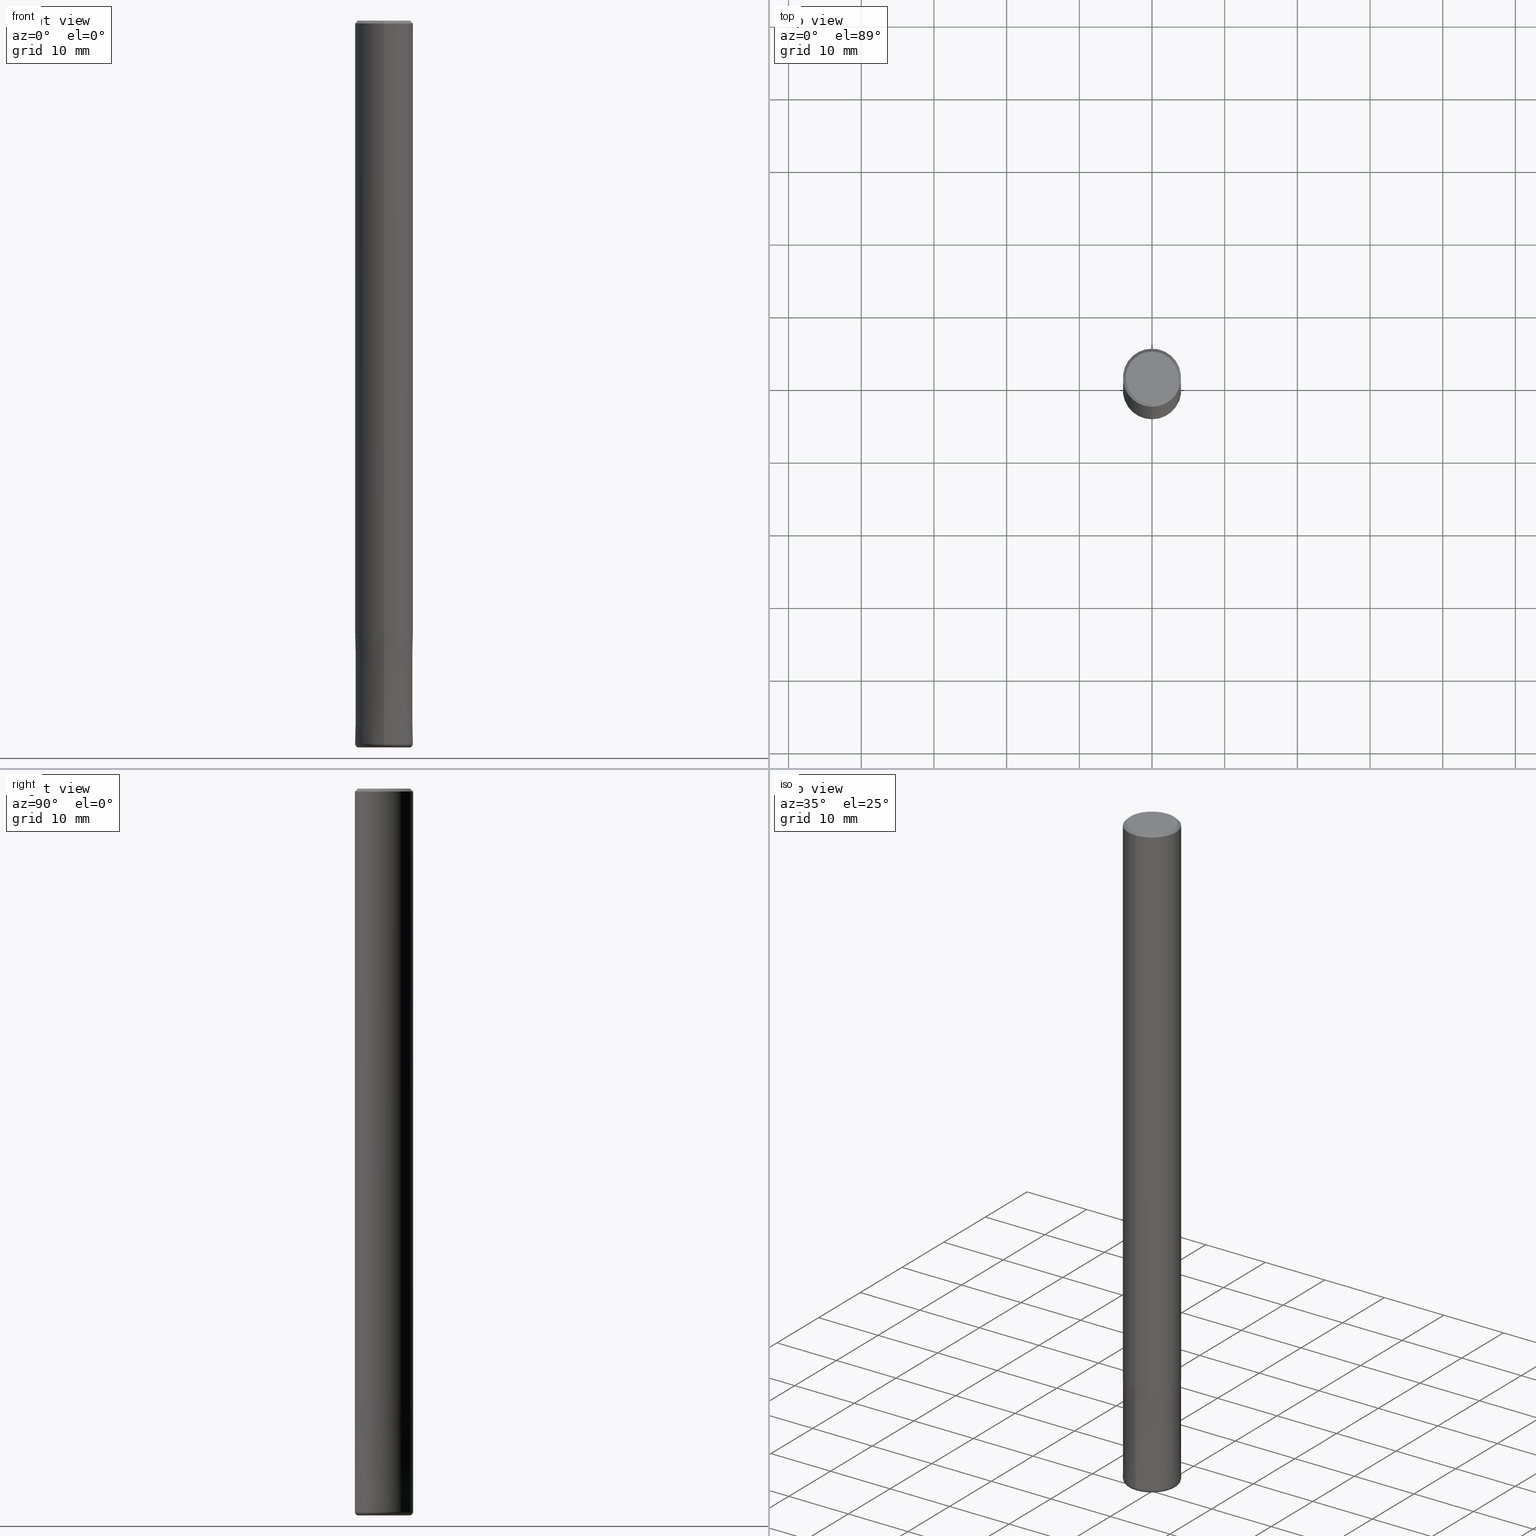
[diagram: canonical four-view strip — front | top / right | iso, engineering-drawing reading convention]
A machine part, canonical four-view strip (front | top / right | iso — engineering-drawing reading convention). The complete STEP part file that produces these views, byte-faithful:
ISO-10303-21;
HEADER;
FILE_DESCRIPTION(('no description'),'unknown implementation level');
FILE_NAME('CNRS4080-05-16-Huellk.stp','  ',('CIMSOURCE GmbH'),('CADClick - KiM GmbH - www.kimweb.de'),'unknown preprocess','ACIS','unknown authorization');
FILE_SCHEMA(('automotive_design'));
ENDSEC;
DATA;
#1=MECHANICAL_DESIGN_GEOMETRIC_PRESENTATION_REPRESENTATION(' ',(#10,#11,#12,#13,#14,#15,#16,#17,#18,#19,#20,#21,#22,#23,#24,#25,#26,#27,#28,#29,#30,#31,#32,#33,#34,#35,#36,#37,#38,#39,#40,#41,#42,#43,#44,#45,#46,#47,#48,#49,#50,#51,#52,#53),#6);
#2=PRODUCT_DEFINITION_CONTEXT('',#54,'design');
#3=APPLICATION_PROTOCOL_DEFINITION('INTERNATIONAL STANDARD','automotive_design',1994,#54);
#4=PRODUCT_CATEGORY_RELATIONSHIP('NONE','NONE',#55,#56);
#5=SHAPE_DEFINITION_REPRESENTATION(#57,#58);
#6= (GEOMETRIC_REPRESENTATION_CONTEXT(3)GLOBAL_UNCERTAINTY_ASSIGNED_CONTEXT((#61))GLOBAL_UNIT_ASSIGNED_CONTEXT((#63,#64,#65))REPRESENTATION_CONTEXT('NONE','WORKSPACE'));
#10=STYLED_ITEM('',(#67),#68);
#11=STYLED_ITEM('',(#69),#70);
#12=STYLED_ITEM('',(#71),#72);
#13=STYLED_ITEM('',(#73),#74);
#14=STYLED_ITEM('',(#75),#76);
#15=STYLED_ITEM('',(#77),#78);
#16=STYLED_ITEM('',(#79),#80);
#17=STYLED_ITEM('',(#81),#82);
#18=STYLED_ITEM('',(#83),#84);
#19=STYLED_ITEM('',(#85),#86);
#20=STYLED_ITEM('',(#87),#88);
#21=STYLED_ITEM('',(#89),#90);
#22=STYLED_ITEM('',(#91),#92);
#23=STYLED_ITEM('',(#93),#94);
#24=STYLED_ITEM('',(#95),#96);
#25=STYLED_ITEM('',(#97),#98);
#26=STYLED_ITEM('',(#99),#100);
#27=STYLED_ITEM('',(#101),#102);
#28=STYLED_ITEM('',(#103),#104);
#29=STYLED_ITEM('',(#105),#106);
#30=STYLED_ITEM('',(#107),#108);
#31=STYLED_ITEM('',(#109),#110);
#32=STYLED_ITEM('',(#111),#112);
#33=STYLED_ITEM('',(#113),#114);
#34=STYLED_ITEM('',(#115),#116);
#35=STYLED_ITEM('',(#117),#118);
#36=STYLED_ITEM('',(#119),#120);
#37=STYLED_ITEM('',(#121),#122);
#38=STYLED_ITEM('',(#123),#124);
#39=STYLED_ITEM('',(#125),#126);
#40=STYLED_ITEM('',(#127),#128);
#41=STYLED_ITEM('',(#129),#130);
#42=STYLED_ITEM('',(#131),#132);
#43=STYLED_ITEM('',(#133),#134);
#44=STYLED_ITEM('',(#135),#136);
#45=STYLED_ITEM('',(#137),#138);
#46=STYLED_ITEM('',(#139),#140);
#47=STYLED_ITEM('',(#141),#142);
#48=STYLED_ITEM('',(#143),#144);
#49=STYLED_ITEM('',(#145),#146);
#50=STYLED_ITEM('',(#147),#148);
#51=STYLED_ITEM('',(#149),#150);
#52=STYLED_ITEM('',(#151),#152);
#53=STYLED_ITEM('',(#153),#154);
#54=APPLICATION_CONTEXT(' ');
#55=PRODUCT_CATEGORY('part','NONE');
#56=PRODUCT_RELATED_PRODUCT_CATEGORY('detail',' ',(#155));
#57=PRODUCT_DEFINITION_SHAPE('NONE','NONE',#156);
#58=ADVANCED_BREP_SHAPE_REPRESENTATION('1',(#86,#157),#6);
#61=UNCERTAINTY_MEASURE_WITH_UNIT(LENGTH_MEASURE(1.0E-006),#63,'','');
#63= (CONVERSION_BASED_UNIT('MILLIMETRE',#160)LENGTH_UNIT()NAMED_UNIT(#163));
#64= (NAMED_UNIT(#165)PLANE_ANGLE_UNIT()SI_UNIT($,.RADIAN.));
#65= (NAMED_UNIT(#165)SOLID_ANGLE_UNIT()SI_UNIT($,.STERADIAN.));
#67=PRESENTATION_STYLE_ASSIGNMENT((#171));
#68=EDGE_CURVE('',#92,#152,#172,.T.);
#69=PRESENTATION_STYLE_ASSIGNMENT((#173));
#70=ADVANCED_FACE('',(#174),#175,.T.);
#71=PRESENTATION_STYLE_ASSIGNMENT((#176));
#72=EDGE_CURVE('',#90,#154,#177,.T.);
#73=PRESENTATION_STYLE_ASSIGNMENT((#178));
#74=VERTEX_POINT('',#179);
#75=PRESENTATION_STYLE_ASSIGNMENT((#180));
#76=VERTEX_POINT('',#181);
#77=PRESENTATION_STYLE_ASSIGNMENT((#182));
#78=ADVANCED_FACE('',(#183),#184,.T.);
#79=PRESENTATION_STYLE_ASSIGNMENT((#185));
#80=ADVANCED_FACE('',(#186),#187,.T.);
#81=PRESENTATION_STYLE_ASSIGNMENT((#188));
#82=EDGE_CURVE('',#116,#74,#189,.T.);
#83=PRESENTATION_STYLE_ASSIGNMENT((#190));
#84=VERTEX_POINT('',#191);
#85=PRESENTATION_STYLE_ASSIGNMENT((#192));
#86=MANIFOLD_SOLID_BREP('1',#193);
#87=PRESENTATION_STYLE_ASSIGNMENT((#194));
#88=ADVANCED_FACE('',(#195,#196),#197,.T.);
#89=PRESENTATION_STYLE_ASSIGNMENT((#198));
#90=VERTEX_POINT('',#199);
#91=PRESENTATION_STYLE_ASSIGNMENT((#200));
#92=VERTEX_POINT('',#201);
#93=PRESENTATION_STYLE_ASSIGNMENT((#202));
#94=EDGE_CURVE('',#152,#116,#203,.T.);
#95=PRESENTATION_STYLE_ASSIGNMENT((#204));
#96=EDGE_CURVE('',#76,#108,#205,.T.);
#97=PRESENTATION_STYLE_ASSIGNMENT((#206));
#98=VERTEX_POINT('',#207);
#99=PRESENTATION_STYLE_ASSIGNMENT((#208));
#100=EDGE_CURVE('',#92,#74,#209,.T.);
#101=PRESENTATION_STYLE_ASSIGNMENT((#210));
#102=EDGE_CURVE('',#108,#76,#211,.T.);
#103=PRESENTATION_STYLE_ASSIGNMENT((#212));
#104=EDGE_CURVE('',#98,#92,#213,.T.);
#105=PRESENTATION_STYLE_ASSIGNMENT((#214));
#106=EDGE_CURVE('',#116,#152,#215,.T.);
#107=PRESENTATION_STYLE_ASSIGNMENT((#216));
#108=VERTEX_POINT('',#217);
#109=PRESENTATION_STYLE_ASSIGNMENT((#218));
#110=VERTEX_POINT('',#219);
#111=PRESENTATION_STYLE_ASSIGNMENT((#220));
#112=VERTEX_POINT('',#221);
#113=PRESENTATION_STYLE_ASSIGNMENT((#222));
#114=EDGE_CURVE('',#154,#90,#223,.T.);
#115=PRESENTATION_STYLE_ASSIGNMENT((#224));
#116=VERTEX_POINT('',#225);
#117=PRESENTATION_STYLE_ASSIGNMENT((#226));
#118=EDGE_CURVE('',#110,#112,#227,.T.);
#119=PRESENTATION_STYLE_ASSIGNMENT((#228));
#120=ADVANCED_FACE('',(#229),#230,.T.);
#121=PRESENTATION_STYLE_ASSIGNMENT((#231));
#122=ADVANCED_FACE('',(#232),#233,.T.);
#123=PRESENTATION_STYLE_ASSIGNMENT((#234));
#124=EDGE_CURVE('',#90,#112,#235,.T.);
#125=PRESENTATION_STYLE_ASSIGNMENT((#236));
#126=EDGE_CURVE('',#74,#84,#237,.T.);
#127=PRESENTATION_STYLE_ASSIGNMENT((#238));
#128=EDGE_CURVE('',#74,#92,#239,.T.);
#129=PRESENTATION_STYLE_ASSIGNMENT((#240));
#130=EDGE_CURVE('',#108,#154,#241,.T.);
#131=PRESENTATION_STYLE_ASSIGNMENT((#242));
#132=EDGE_CURVE('',#84,#98,#243,.T.);
#133=PRESENTATION_STYLE_ASSIGNMENT((#244));
#134=EDGE_CURVE('',#110,#154,#245,.T.);
#135=PRESENTATION_STYLE_ASSIGNMENT((#246));
#136=ADVANCED_FACE('',(#247),#248,.T.);
#137=PRESENTATION_STYLE_ASSIGNMENT((#249));
#138=EDGE_CURVE('',#112,#110,#250,.T.);
#139=PRESENTATION_STYLE_ASSIGNMENT((#251));
#140=EDGE_CURVE('',#98,#84,#252,.T.);
#141=PRESENTATION_STYLE_ASSIGNMENT((#253));
#142=ADVANCED_FACE('',(#254),#255,.T.);
#143=PRESENTATION_STYLE_ASSIGNMENT((#256));
#144=ADVANCED_FACE('',(#257),#258,.T.);
#145=PRESENTATION_STYLE_ASSIGNMENT((#259));
#146=ADVANCED_FACE('',(#260),#261,.T.);
#147=PRESENTATION_STYLE_ASSIGNMENT((#262));
#148=EDGE_CURVE('',#90,#76,#263,.T.);
#149=PRESENTATION_STYLE_ASSIGNMENT((#264));
#150=ADVANCED_FACE('',(#265),#266,.T.);
#151=PRESENTATION_STYLE_ASSIGNMENT((#267));
#152=VERTEX_POINT('',#268);
#153=PRESENTATION_STYLE_ASSIGNMENT((#269));
#154=VERTEX_POINT('',#270);
#155=PRODUCT('1','1','PART-1-DESC',(#271));
#156=PRODUCT_DEFINITION('NONE','NONE',#272,#2);
#157=AXIS2_PLACEMENT_3D('',#273,#274,#275);
#160=LENGTH_MEASURE_WITH_UNIT(LENGTH_MEASURE(1.0),#276);
#163=DIMENSIONAL_EXPONENTS(1.0,0.0,0.0,0.0,0.0,0.0,0.0);
#165=DIMENSIONAL_EXPONENTS(0.0,0.0,0.0,0.0,0.0,0.0,0.0);
#171=CURVE_STYLE('',#277,POSITIVE_LENGTH_MEASURE(1.0E-006),#278);
#172=LINE('',#279,#280);
#173=SURFACE_STYLE_USAGE(.BOTH.,#281);
#174=FACE_OUTER_BOUND('',#282,.T.);
#175=CYLINDRICAL_SURFACE('',#283,4.0);
#176=CURVE_STYLE('',#284,POSITIVE_LENGTH_MEASURE(1.0E-006),#285);
#177=CIRCLE('',#286,4.0);
#178=POINT_STYLE(' ',#287,POSITIVE_LENGTH_MEASURE(1.0E-006),#288);
#179=CARTESIAN_POINT('',(4.89842541528951E-016,-4.0,-0.400000000000006));
#180=POINT_STYLE(' ',#289,POSITIVE_LENGTH_MEASURE(1.0E-006),#290);
#181=CARTESIAN_POINT('',(4.89830295465413E-016,-3.9999,-84.0));
#182=SURFACE_STYLE_USAGE(.BOTH.,#291);
#183=FACE_OUTER_BOUND('',#292,.T.);
#184=CONICAL_SURFACE('',#293,3.99995,6.45161290314991E-006);
#185=SURFACE_STYLE_USAGE(.BOTH.,#294);
#186=FACE_OUTER_BOUND('',#295,.T.);
#187=CONICAL_SURFACE('',#296,3.8,0.785398163397441);
#188=CURVE_STYLE('',#297,POSITIVE_LENGTH_MEASURE(1.0E-006),#298);
#189=LINE('',#299,#300);
#190=POINT_STYLE(' ',#301,POSITIVE_LENGTH_MEASURE(1.0E-006),#302);
#191=CARTESIAN_POINT('',(4.40858287376056E-016,-3.6,0.0));
#192=SURFACE_STYLE_USAGE(.BOTH.,#303);
#193=CLOSED_SHELL('',(#144,#78,#150,#122,#88,#136,#80,#70,#146,#120,#142));
#194=SURFACE_STYLE_USAGE(.BOTH.,#304);
#195=FACE_OUTER_BOUND('',#305,.T.);
#196=FACE_BOUND('',#306,.T.);
#197=PLANE('',#307);
#198=POINT_STYLE(' ',#308,POSITIVE_LENGTH_MEASURE(1.0E-006),#309);
#199=CARTESIAN_POINT('',(4.89842541528951E-016,-4.0,-99.5));
#200=POINT_STYLE(' ',#310,POSITIVE_LENGTH_MEASURE(1.0E-006),#311);
#201=CARTESIAN_POINT('',(0.0,4.0,-0.400000000000006));
#202=CURVE_STYLE('',#312,POSITIVE_LENGTH_MEASURE(1.0E-006),#313);
#203=CIRCLE('',#314,4.0);
#204=CURVE_STYLE('',#315,POSITIVE_LENGTH_MEASURE(1.0E-006),#316);
#205=CIRCLE('',#317,3.9999);
#206=POINT_STYLE(' ',#318,POSITIVE_LENGTH_MEASURE(1.0E-006),#319);
#207=CARTESIAN_POINT('',(0.0,3.6,0.0));
#208=CURVE_STYLE('',#320,POSITIVE_LENGTH_MEASURE(1.0E-006),#321);
#209=CIRCLE('',#322,4.0);
#210=CURVE_STYLE('',#323,POSITIVE_LENGTH_MEASURE(1.0E-006),#324);
#211=CIRCLE('',#325,3.9999);
#212=CURVE_STYLE('',#326,POSITIVE_LENGTH_MEASURE(1.0E-006),#327);
#213=LINE('',#328,#329);
#214=CURVE_STYLE('',#330,POSITIVE_LENGTH_MEASURE(1.0E-006),#331);
#215=CIRCLE('',#332,4.0);
#216=POINT_STYLE(' ',#333,POSITIVE_LENGTH_MEASURE(1.0E-006),#334);
#217=CARTESIAN_POINT('',(0.0,3.9999,-84.0));
#218=POINT_STYLE(' ',#335,POSITIVE_LENGTH_MEASURE(1.0E-006),#336);
#219=CARTESIAN_POINT('',(0.0,3.5,-100.0));
#220=POINT_STYLE(' ',#337,POSITIVE_LENGTH_MEASURE(1.0E-006),#338);
#221=CARTESIAN_POINT('',(4.28612223837832E-016,-3.5,-100.0));
#222=CURVE_STYLE('',#339,POSITIVE_LENGTH_MEASURE(1.0E-006),#340);
#223=CIRCLE('',#341,4.0);
#224=POINT_STYLE(' ',#342,POSITIVE_LENGTH_MEASURE(1.0E-006),#343);
#225=CARTESIAN_POINT('',(4.89842541528951E-016,-4.0,-84.0));
#226=CURVE_STYLE('',#344,POSITIVE_LENGTH_MEASURE(1.0E-006),#345);
#227=CIRCLE('',#346,3.5);
#228=SURFACE_STYLE_USAGE(.BOTH.,#347);
#229=FACE_OUTER_BOUND('',#348,.T.);
#230=TOROIDAL_SURFACE('',#349,3.5,0.499999999999995);
#231=SURFACE_STYLE_USAGE(.BOTH.,#350);
#232=FACE_OUTER_BOUND('',#351,.T.);
#233=CONICAL_SURFACE('',#352,3.8,0.785398163397441);
#234=CURVE_STYLE('',#353,POSITIVE_LENGTH_MEASURE(1.0E-006),#354);
#235=CIRCLE('',#355,0.499999999999995);
#236=CURVE_STYLE('',#356,POSITIVE_LENGTH_MEASURE(1.0E-006),#357);
#237=LINE('',#358,#359);
#238=CURVE_STYLE('',#360,POSITIVE_LENGTH_MEASURE(1.0E-006),#361);
#239=CIRCLE('',#362,4.0);
#240=CURVE_STYLE('',#363,POSITIVE_LENGTH_MEASURE(1.0E-006),#364);
#241=LINE('',#365,#366);
#242=CURVE_STYLE('',#367,POSITIVE_LENGTH_MEASURE(1.0E-006),#368);
#243=CIRCLE('',#369,3.6);
#244=CURVE_STYLE('',#370,POSITIVE_LENGTH_MEASURE(1.0E-006),#371);
#245=CIRCLE('',#372,0.499999999999995);
#246=SURFACE_STYLE_USAGE(.BOTH.,#373);
#247=FACE_OUTER_BOUND('',#374,.T.);
#248=PLANE('',#375);
#249=CURVE_STYLE('',#376,POSITIVE_LENGTH_MEASURE(1.0E-006),#377);
#250=CIRCLE('',#378,3.5);
#251=CURVE_STYLE('',#379,POSITIVE_LENGTH_MEASURE(1.0E-006),#380);
#252=CIRCLE('',#381,3.6);
#253=SURFACE_STYLE_USAGE(.BOTH.,#382);
#254=FACE_OUTER_BOUND('',#383,.T.);
#255=PLANE('',#384);
#256=SURFACE_STYLE_USAGE(.BOTH.,#385);
#257=FACE_OUTER_BOUND('',#386,.T.);
#258=TOROIDAL_SURFACE('',#387,3.5,0.499999999999995);
#259=SURFACE_STYLE_USAGE(.BOTH.,#388);
#260=FACE_OUTER_BOUND('',#389,.T.);
#261=CONICAL_SURFACE('',#390,3.99995,6.45161290314991E-006);
#262=CURVE_STYLE('',#391,POSITIVE_LENGTH_MEASURE(1.0E-006),#392);
#263=LINE('',#393,#394);
#264=SURFACE_STYLE_USAGE(.BOTH.,#395);
#265=FACE_OUTER_BOUND('',#396,.T.);
#266=CYLINDRICAL_SURFACE('',#397,4.0);
#267=POINT_STYLE(' ',#398,POSITIVE_LENGTH_MEASURE(1.0E-006),#399);
#268=CARTESIAN_POINT('',(0.0,4.0,-84.0));
#269=POINT_STYLE(' ',#400,POSITIVE_LENGTH_MEASURE(1.0E-006),#401);
#270=CARTESIAN_POINT('',(0.0,4.0,-99.5));
#271=PRODUCT_CONTEXT('',#54,'mechanical');
#272=PRODUCT_DEFINITION_FORMATION_WITH_SPECIFIED_SOURCE(' ','NONE',#155,.NOT_KNOWN.);
#273=CARTESIAN_POINT('',(0.0,0.0,0.0));
#274=DIRECTION('',(0.0,0.0,1.0));
#275=DIRECTION('',(1.0,0.0,0.0));
#276= (NAMED_UNIT(#163)LENGTH_UNIT()SI_UNIT(.MILLI.,.METRE.));
#277=DRAUGHTING_PRE_DEFINED_CURVE_FONT('continuous');
#278=COLOUR_RGB('',0.498039215803146,0.498039215803146,0.498039215803146);
#279=CARTESIAN_POINT('',(-4.89842541528951E-016,4.0,-42.2));
#280=VECTOR('',#403,1.0);
#281=SURFACE_SIDE_STYLE('',(#404));
#282=EDGE_LOOP('',(#405,#406,#407,#408));
#283=AXIS2_PLACEMENT_3D('',#409,#410,#411);
#284=DRAUGHTING_PRE_DEFINED_CURVE_FONT('continuous');
#285=COLOUR_RGB('',0.800000011920929,0.800000011920929,0.800000011920929);
#286=AXIS2_PLACEMENT_3D('',#412,#413,#414);
#287=PRE_DEFINED_MARKER('');
#288=COLOUR_RGB('',0.498039215803146,0.498039215803146,0.498039215803146);
#289=PRE_DEFINED_MARKER('');
#290=COLOUR_RGB('',0.800000011920929,0.800000011920929,0.800000011920929);
#291=SURFACE_SIDE_STYLE('',(#415));
#292=EDGE_LOOP('',(#416,#417,#418,#419));
#293=AXIS2_PLACEMENT_3D('',#420,#421,#422);
#294=SURFACE_SIDE_STYLE('',(#423));
#295=EDGE_LOOP('',(#424,#425,#426,#427));
#296=AXIS2_PLACEMENT_3D('',#428,#429,#430);
#297=DRAUGHTING_PRE_DEFINED_CURVE_FONT('continuous');
#298=COLOUR_RGB('',0.498039215803146,0.498039215803146,0.498039215803146);
#299=CARTESIAN_POINT('',(4.89842541528951E-016,-4.0,-42.2));
#300=VECTOR('',#431,1.0);
#301=PRE_DEFINED_MARKER('');
#302=COLOUR_RGB('',0.498039215803146,0.498039215803146,0.498039215803146);
#303=SURFACE_SIDE_STYLE('',(#432));
#304=SURFACE_SIDE_STYLE('',(#433));
#305=EDGE_LOOP('',(#434,#435));
#306=EDGE_LOOP('',(#436,#437));
#307=AXIS2_PLACEMENT_3D('',#438,#439,#440);
#308=PRE_DEFINED_MARKER('');
#309=COLOUR_RGB('',0.800000011920929,0.800000011920929,0.800000011920929);
#310=PRE_DEFINED_MARKER('');
#311=COLOUR_RGB('',0.498039215803146,0.498039215803146,0.498039215803146);
#312=DRAUGHTING_PRE_DEFINED_CURVE_FONT('continuous');
#313=COLOUR_RGB('',0.498039215803146,0.498039215803146,0.498039215803146);
#314=AXIS2_PLACEMENT_3D('',#441,#442,#443);
#315=DRAUGHTING_PRE_DEFINED_CURVE_FONT('continuous');
#316=COLOUR_RGB('',0.800000011920929,0.800000011920929,0.800000011920929);
#317=AXIS2_PLACEMENT_3D('',#444,#445,#446);
#318=PRE_DEFINED_MARKER('');
#319=COLOUR_RGB('',0.498039215803146,0.498039215803146,0.498039215803146);
#320=DRAUGHTING_PRE_DEFINED_CURVE_FONT('continuous');
#321=COLOUR_RGB('',0.498039215803146,0.498039215803146,0.498039215803146);
#322=AXIS2_PLACEMENT_3D('',#447,#448,#449);
#323=DRAUGHTING_PRE_DEFINED_CURVE_FONT('continuous');
#324=COLOUR_RGB('',0.800000011920929,0.800000011920929,0.800000011920929);
#325=AXIS2_PLACEMENT_3D('',#450,#451,#452);
#326=DRAUGHTING_PRE_DEFINED_CURVE_FONT('continuous');
#327=COLOUR_RGB('',0.498039215803146,0.498039215803146,0.498039215803146);
#328=CARTESIAN_POINT('',(-4.65350414452503E-016,3.8,-0.200000000000003));
#329=VECTOR('',#453,1.0);
#330=DRAUGHTING_PRE_DEFINED_CURVE_FONT('continuous');
#331=COLOUR_RGB('',0.498039215803146,0.498039215803146,0.498039215803146);
#332=AXIS2_PLACEMENT_3D('',#454,#455,#456);
#333=PRE_DEFINED_MARKER('');
#334=COLOUR_RGB('',0.800000011920929,0.800000011920929,0.800000011920929);
#335=PRE_DEFINED_MARKER('');
#336=COLOUR_RGB('',0.800000011920929,0.800000011920929,0.800000011920929);
#337=PRE_DEFINED_MARKER('');
#338=COLOUR_RGB('',0.800000011920929,0.800000011920929,0.800000011920929);
#339=DRAUGHTING_PRE_DEFINED_CURVE_FONT('continuous');
#340=COLOUR_RGB('',0.800000011920929,0.800000011920929,0.800000011920929);
#341=AXIS2_PLACEMENT_3D('',#457,#458,#459);
#342=PRE_DEFINED_MARKER('');
#343=COLOUR_RGB('',0.498039215803146,0.498039215803146,0.498039215803146);
#344=DRAUGHTING_PRE_DEFINED_CURVE_FONT('continuous');
#345=COLOUR_RGB('',0.800000011920929,0.800000011920929,0.800000011920929);
#346=AXIS2_PLACEMENT_3D('',#460,#461,#462);
#347=SURFACE_SIDE_STYLE('',(#463));
#348=EDGE_LOOP('',(#464,#465,#466,#467));
#349=AXIS2_PLACEMENT_3D('',#468,#469,#470);
#350=SURFACE_SIDE_STYLE('',(#471));
#351=EDGE_LOOP('',(#472,#473,#474,#475));
#352=AXIS2_PLACEMENT_3D('',#476,#477,#478);
#353=DRAUGHTING_PRE_DEFINED_CURVE_FONT('continuous');
#354=COLOUR_RGB('',0.800000011920929,0.800000011920929,0.800000011920929);
#355=AXIS2_PLACEMENT_3D('',#479,#480,#481);
#356=DRAUGHTING_PRE_DEFINED_CURVE_FONT('continuous');
#357=COLOUR_RGB('',0.498039215803146,0.498039215803146,0.498039215803146);
#358=CARTESIAN_POINT('',(4.65350414452503E-016,-3.8,-0.200000000000003));
#359=VECTOR('',#482,1.0);
#360=DRAUGHTING_PRE_DEFINED_CURVE_FONT('continuous');
#361=COLOUR_RGB('',0.498039215803146,0.498039215803146,0.498039215803146);
#362=AXIS2_PLACEMENT_3D('',#483,#484,#485);
#363=DRAUGHTING_PRE_DEFINED_CURVE_FONT('continuous');
#364=COLOUR_RGB('',0.800000011920929,0.800000011920929,0.800000011920929);
#365=CARTESIAN_POINT('',(-4.89836418497182E-016,3.99995,-91.75));
#366=VECTOR('',#486,1.0);
#367=DRAUGHTING_PRE_DEFINED_CURVE_FONT('continuous');
#368=COLOUR_RGB('',0.498039215803146,0.498039215803146,0.498039215803146);
#369=AXIS2_PLACEMENT_3D('',#487,#488,#489);
#370=DRAUGHTING_PRE_DEFINED_CURVE_FONT('continuous');
#371=COLOUR_RGB('',0.800000011920929,0.800000011920929,0.800000011920929);
#372=AXIS2_PLACEMENT_3D('',#490,#491,#492);
#373=SURFACE_SIDE_STYLE('',(#493));
#374=EDGE_LOOP('',(#494,#495));
#375=AXIS2_PLACEMENT_3D('',#496,#497,#498);
#376=DRAUGHTING_PRE_DEFINED_CURVE_FONT('continuous');
#377=COLOUR_RGB('',0.800000011920929,0.800000011920929,0.800000011920929);
#378=AXIS2_PLACEMENT_3D('',#499,#500,#501);
#379=DRAUGHTING_PRE_DEFINED_CURVE_FONT('continuous');
#380=COLOUR_RGB('',0.498039215803146,0.498039215803146,0.498039215803146);
#381=AXIS2_PLACEMENT_3D('',#502,#503,#504);
#382=SURFACE_SIDE_STYLE('',(#505));
#383=EDGE_LOOP('',(#506,#507));
#384=AXIS2_PLACEMENT_3D('',#508,#509,#510);
#385=SURFACE_SIDE_STYLE('',(#511));
#386=EDGE_LOOP('',(#512,#513,#514,#515));
#387=AXIS2_PLACEMENT_3D('',#516,#517,#518);
#388=SURFACE_SIDE_STYLE('',(#519));
#389=EDGE_LOOP('',(#520,#521,#522,#523));
#390=AXIS2_PLACEMENT_3D('',#524,#525,#526);
#391=DRAUGHTING_PRE_DEFINED_CURVE_FONT('continuous');
#392=COLOUR_RGB('',0.800000011920929,0.800000011920929,0.800000011920929);
#393=CARTESIAN_POINT('',(4.89836418497182E-016,-3.99995,-91.75));
#394=VECTOR('',#527,1.0);
#395=SURFACE_SIDE_STYLE('',(#528));
#396=EDGE_LOOP('',(#529,#530,#531,#532));
#397=AXIS2_PLACEMENT_3D('',#533,#534,#535);
#398=PRE_DEFINED_MARKER('');
#399=COLOUR_RGB('',0.498039215803146,0.498039215803146,0.498039215803146);
#400=PRE_DEFINED_MARKER('');
#401=COLOUR_RGB('',0.800000011920929,0.800000011920929,0.800000011920929);
#403=DIRECTION('',(0.0,0.0,-1.0));
#404=SURFACE_STYLE_FILL_AREA(#536);
#405=ORIENTED_EDGE('',*,*,#68,.T.);
#406=ORIENTED_EDGE('',*,*,#106,.F.);
#407=ORIENTED_EDGE('',*,*,#82,.T.);
#408=ORIENTED_EDGE('',*,*,#128,.T.);
#409=CARTESIAN_POINT('',(0.0,0.0,-42.2));
#410=DIRECTION('',(-0.0,-0.0,1.0));
#411=DIRECTION('',(0.0,1.0,0.0));
#412=CARTESIAN_POINT('',(0.0,0.0,-99.5));
#413=DIRECTION('',(0.0,0.0,-1.0));
#414=DIRECTION('',(0.0,1.0,0.0));
#415=SURFACE_STYLE_FILL_AREA(#537);
#416=ORIENTED_EDGE('',*,*,#130,.F.);
#417=ORIENTED_EDGE('',*,*,#102,.T.);
#418=ORIENTED_EDGE('',*,*,#148,.F.);
#419=ORIENTED_EDGE('',*,*,#114,.F.);
#420=CARTESIAN_POINT('',(0.0,0.0,-91.75));
#421=DIRECTION('',(0.0,-0.0,-1.0));
#422=DIRECTION('',(0.0,1.0,0.0));
#423=SURFACE_STYLE_FILL_AREA(#538);
#424=ORIENTED_EDGE('',*,*,#104,.T.);
#425=ORIENTED_EDGE('',*,*,#128,.F.);
#426=ORIENTED_EDGE('',*,*,#126,.T.);
#427=ORIENTED_EDGE('',*,*,#132,.T.);
#428=CARTESIAN_POINT('',(0.0,0.0,-0.200000000000003));
#429=DIRECTION('',(0.0,-0.0,-1.0));
#430=DIRECTION('',(0.0,1.0,0.0));
#431=DIRECTION('',(-0.0,-0.0,1.0));
#432=SURFACE_STYLE_FILL_AREA(#539);
#433=SURFACE_STYLE_FILL_AREA(#540);
#434=ORIENTED_EDGE('',*,*,#94,.T.);
#435=ORIENTED_EDGE('',*,*,#106,.T.);
#436=ORIENTED_EDGE('',*,*,#102,.F.);
#437=ORIENTED_EDGE('',*,*,#96,.F.);
#438=CARTESIAN_POINT('',(0.0,2.0,-84.0));
#439=DIRECTION('',(0.0,0.0,-1.0));
#440=DIRECTION('',(0.0,1.0,0.0));
#441=CARTESIAN_POINT('',(0.0,0.0,-84.0));
#442=DIRECTION('',(0.0,0.0,-1.0));
#443=DIRECTION('',(0.0,1.0,0.0));
#444=CARTESIAN_POINT('',(0.0,0.0,-84.0));
#445=DIRECTION('',(0.0,0.0,-1.0));
#446=DIRECTION('',(0.0,1.0,0.0));
#447=CARTESIAN_POINT('',(0.0,0.0,-0.400000000000006));
#448=DIRECTION('',(0.0,0.0,-1.0));
#449=DIRECTION('',(0.0,1.0,0.0));
#450=CARTESIAN_POINT('',(0.0,0.0,-84.0));
#451=DIRECTION('',(0.0,0.0,-1.0));
#452=DIRECTION('',(0.0,1.0,0.0));
#453=DIRECTION('',(-8.65927457071929E-017,0.707106781186542,-0.707106781186553));
#454=CARTESIAN_POINT('',(0.0,0.0,-84.0));
#455=DIRECTION('',(0.0,0.0,-1.0));
#456=DIRECTION('',(0.0,1.0,0.0));
#457=CARTESIAN_POINT('',(0.0,0.0,-99.5));
#458=DIRECTION('',(0.0,0.0,-1.0));
#459=DIRECTION('',(0.0,1.0,0.0));
#460=CARTESIAN_POINT('',(0.0,0.0,-100.0));
#461=DIRECTION('',(0.0,0.0,-1.0));
#462=DIRECTION('',(0.0,1.0,0.0));
#463=SURFACE_STYLE_FILL_AREA(#541);
#464=ORIENTED_EDGE('',*,*,#124,.T.);
#465=ORIENTED_EDGE('',*,*,#118,.F.);
#466=ORIENTED_EDGE('',*,*,#134,.T.);
#467=ORIENTED_EDGE('',*,*,#114,.T.);
#468=CARTESIAN_POINT('',(0.0,0.0,-99.5));
#469=DIRECTION('',(0.0,0.0,-1.0));
#470=DIRECTION('',(0.0,-1.0,0.0));
#471=SURFACE_STYLE_FILL_AREA(#542);
#472=ORIENTED_EDGE('',*,*,#104,.F.);
#473=ORIENTED_EDGE('',*,*,#140,.T.);
#474=ORIENTED_EDGE('',*,*,#126,.F.);
#475=ORIENTED_EDGE('',*,*,#100,.F.);
#476=CARTESIAN_POINT('',(0.0,0.0,-0.200000000000003));
#477=DIRECTION('',(0.0,-0.0,-1.0));
#478=DIRECTION('',(0.0,1.0,0.0));
#479=CARTESIAN_POINT('',(4.28612223837833E-016,-3.5,-99.5));
#480=DIRECTION('',(1.0,1.22460635382238E-016,0.0));
#481=DIRECTION('',(1.22460635382238E-016,-1.0,-0.0));
#482=DIRECTION('',(-8.65927457071929E-017,0.707106781186542,0.707106781186553));
#483=CARTESIAN_POINT('',(0.0,0.0,-0.400000000000006));
#484=DIRECTION('',(0.0,0.0,-1.0));
#485=DIRECTION('',(0.0,1.0,0.0));
#486=DIRECTION('',(-7.900686153545E-022,6.45161290310515E-006,-0.999999999979188));
#487=CARTESIAN_POINT('',(0.0,0.0,0.0));
#488=DIRECTION('',(0.0,0.0,-1.0));
#489=DIRECTION('',(0.0,1.0,0.0));
#490=CARTESIAN_POINT('',(-4.28612223837833E-016,3.5,-99.5));
#491=DIRECTION('',(1.0,1.22460635382238E-016,0.0));
#492=DIRECTION('',(-1.22460635382238E-016,1.0,0.0));
#493=SURFACE_STYLE_FILL_AREA(#543);
#494=ORIENTED_EDGE('',*,*,#140,.F.);
#495=ORIENTED_EDGE('',*,*,#132,.F.);
#496=CARTESIAN_POINT('',(0.0,1.8,0.0));
#497=DIRECTION('',(-0.0,0.0,1.0));
#498=DIRECTION('',(0.0,-1.0,0.0));
#499=CARTESIAN_POINT('',(0.0,0.0,-100.0));
#500=DIRECTION('',(0.0,0.0,-1.0));
#501=DIRECTION('',(0.0,1.0,0.0));
#502=CARTESIAN_POINT('',(0.0,0.0,0.0));
#503=DIRECTION('',(0.0,0.0,-1.0));
#504=DIRECTION('',(0.0,1.0,0.0));
#505=SURFACE_STYLE_FILL_AREA(#544);
#506=ORIENTED_EDGE('',*,*,#118,.T.);
#507=ORIENTED_EDGE('',*,*,#138,.T.);
#508=CARTESIAN_POINT('',(0.0,1.75,-100.0));
#509=DIRECTION('',(0.0,0.0,-1.0));
#510=DIRECTION('',(0.0,1.0,0.0));
#511=SURFACE_STYLE_FILL_AREA(#545);
#512=ORIENTED_EDGE('',*,*,#124,.F.);
#513=ORIENTED_EDGE('',*,*,#72,.T.);
#514=ORIENTED_EDGE('',*,*,#134,.F.);
#515=ORIENTED_EDGE('',*,*,#138,.F.);
#516=CARTESIAN_POINT('',(0.0,0.0,-99.5));
#517=DIRECTION('',(0.0,0.0,-1.0));
#518=DIRECTION('',(0.0,-1.0,0.0));
#519=SURFACE_STYLE_FILL_AREA(#546);
#520=ORIENTED_EDGE('',*,*,#130,.T.);
#521=ORIENTED_EDGE('',*,*,#72,.F.);
#522=ORIENTED_EDGE('',*,*,#148,.T.);
#523=ORIENTED_EDGE('',*,*,#96,.T.);
#524=CARTESIAN_POINT('',(0.0,0.0,-91.75));
#525=DIRECTION('',(0.0,-0.0,-1.0));
#526=DIRECTION('',(0.0,1.0,0.0));
#527=DIRECTION('',(-7.900686153545E-022,6.45161290310515E-006,0.999999999979188));
#528=SURFACE_STYLE_FILL_AREA(#547);
#529=ORIENTED_EDGE('',*,*,#68,.F.);
#530=ORIENTED_EDGE('',*,*,#100,.T.);
#531=ORIENTED_EDGE('',*,*,#82,.F.);
#532=ORIENTED_EDGE('',*,*,#94,.F.);
#533=CARTESIAN_POINT('',(0.0,0.0,-42.2));
#534=DIRECTION('',(-0.0,-0.0,1.0));
#535=DIRECTION('',(0.0,1.0,0.0));
#536=FILL_AREA_STYLE('',(#548));
#537=FILL_AREA_STYLE('',(#549));
#538=FILL_AREA_STYLE('',(#550));
#539=FILL_AREA_STYLE('',(#551));
#540=FILL_AREA_STYLE('',(#552));
#541=FILL_AREA_STYLE('',(#553));
#542=FILL_AREA_STYLE('',(#554));
#543=FILL_AREA_STYLE('',(#555));
#544=FILL_AREA_STYLE('',(#556));
#545=FILL_AREA_STYLE('',(#557));
#546=FILL_AREA_STYLE('',(#558));
#547=FILL_AREA_STYLE('',(#559));
#548=FILL_AREA_STYLE_COLOUR('',#560);
#549=FILL_AREA_STYLE_COLOUR('',#561);
#550=FILL_AREA_STYLE_COLOUR('',#562);
#551=FILL_AREA_STYLE_COLOUR('',#563);
#552=FILL_AREA_STYLE_COLOUR('',#564);
#553=FILL_AREA_STYLE_COLOUR('',#565);
#554=FILL_AREA_STYLE_COLOUR('',#566);
#555=FILL_AREA_STYLE_COLOUR('',#567);
#556=FILL_AREA_STYLE_COLOUR('',#568);
#557=FILL_AREA_STYLE_COLOUR('',#569);
#558=FILL_AREA_STYLE_COLOUR('',#570);
#559=FILL_AREA_STYLE_COLOUR('',#571);
#560=COLOUR_RGB('',0.498039215803146,0.498039215803146,0.498039215803146);
#561=COLOUR_RGB('',0.800000011920929,0.800000011920929,0.800000011920929);
#562=COLOUR_RGB('',0.498039215803146,0.498039215803146,0.498039215803146);
#563=COLOUR_RGB('',0.800000011920929,0.800000011920929,0.800000011920929);
#564=COLOUR_RGB('',0.498039215803146,0.498039215803146,0.498039215803146);
#565=COLOUR_RGB('',0.800000011920929,0.800000011920929,0.800000011920929);
#566=COLOUR_RGB('',0.498039215803146,0.498039215803146,0.498039215803146);
#567=COLOUR_RGB('',0.498039215803146,0.498039215803146,0.498039215803146);
#568=COLOUR_RGB('',0.800000011920929,0.800000011920929,0.800000011920929);
#569=COLOUR_RGB('',0.800000011920929,0.800000011920929,0.800000011920929);
#570=COLOUR_RGB('',0.800000011920929,0.800000011920929,0.800000011920929);
#571=COLOUR_RGB('',0.498039215803146,0.498039215803146,0.498039215803146);
#572=AXIS2_PLACEMENT_3D('PCS',#573,#574,#575);
#573=CARTESIAN_POINT('',(0.0,0.0,0.0));
#574=DIRECTION('',(0.0,0.0,1.0));
#575=DIRECTION('',(1.0,0.0,0.0));
#576=AXIS2_PLACEMENT_3D('CIP',#577,#578,#579);
#577=CARTESIAN_POINT('',(0.0,0.0,-100.0));
#578=DIRECTION('',(0.0,0.0,1.0));
#579=DIRECTION('',(1.0,0.0,0.0));
#580=AXIS2_PLACEMENT_3D('CRP',#581,#582,#583);
#581=CARTESIAN_POINT('',(-4.0,0.0,-100.0));
#582=DIRECTION('',(0.0,0.0,1.0));
#583=DIRECTION('',(1.0,0.0,0.0));
#584=AXIS2_PLACEMENT_3D('MCS',#585,#586,#587);
#585=CARTESIAN_POINT('',(0.0,0.0,-84.0));
#586=DIRECTION('',(0.0,0.0,1.0));
#587=DIRECTION('',(1.0,0.0,0.0));
#588=CONSTRUCTIVE_GEOMETRY_REPRESENTATION_RELATIONSHIP('coordinate systems',$,#58,#589);
#589=CONSTRUCTIVE_GEOMETRY_REPRESENTATION('coordinate systems',(#572,#576,#580,#584),#6);
ENDSEC;
END-ISO-10303-21;
